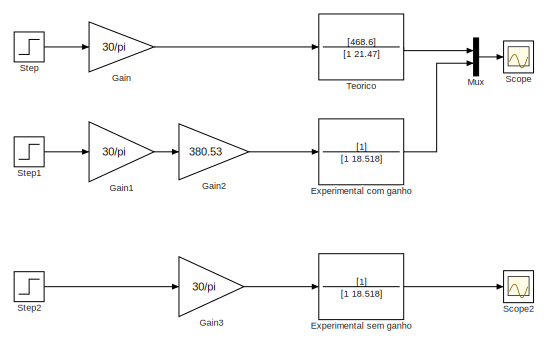
[diagram: root canvas - part 1/2, left side, full height]
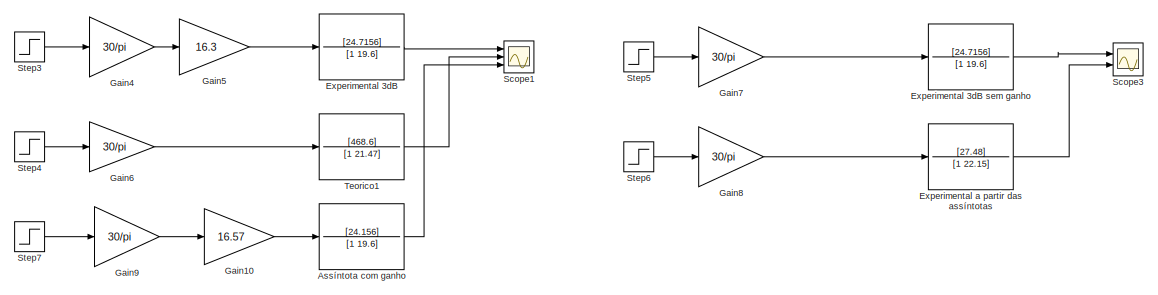
[diagram: root canvas - part 2/2, right side, full height]
MODEL slx_980a101b616e
KIND model
CONFIG AbsTol = auto
CONFIG EnableMultiTasking = off
CONFIG FixedStep = auto
CONFIG MaxStep = auto
CONFIG MinStep = auto
CONFIG RelTol = 1e-3
CONFIG SampleTimeConstraint = Unconstrained
CONFIG Solver = VariableStepAuto
CONFIG SolverName = VariableStepAuto
CONFIG StartTime = 0.0
CONFIG StopTime = 0.75
BLOCK [TransferFcn] Assíntota com ganho
  Denominator = [1 19.6]
  Numerator = [24.156]
BLOCK [TransferFcn] Experimental 3dB
  Denominator = [1 19.6]
  Numerator = [24.7156]
BLOCK [TransferFcn] Experimental 3dB sem ganho 
  Denominator = [1 19.6]
  Numerator = [24.7156]
BLOCK [TransferFcn] Experimental a partir das assíntotas
  Denominator = [1 22.15]
  Numerator = [27.48]
BLOCK [TransferFcn] Experimental com ganho
  Denominator = [1 18.518]
BLOCK [TransferFcn] Experimental sem ganho
  Denominator = [1 18.518]
BLOCK [Gain] Gain
  Gain = 30/pi
BLOCK [Gain] Gain1
  Gain = 30/pi
BLOCK [Gain] Gain10
  Gain = 16.57
BLOCK [Gain] Gain2
  Gain = 380.53
BLOCK [Gain] Gain3
  Gain = 30/pi
BLOCK [Gain] Gain4
  Gain = 30/pi
BLOCK [Gain] Gain5
  Gain = 16.3
BLOCK [Gain] Gain6
  Gain = 30/pi
BLOCK [Gain] Gain7
  Gain = 30/pi
BLOCK [Gain] Gain8
  Gain = 30/pi
BLOCK [Gain] Gain9
  Gain = 30/pi
BLOCK [Mux] Mux
  DisplayOption = bar
  Inputs = 2
  Ports = [2, 1]
BLOCK [Scope] Scope
  Floating = off
  NumInputPorts = 1
  Ports = [1]
  ScopeSpecificationString = Simulink.scopes.TimeScopeBlockCfg('CurrentConfiguration', extmgr.ConfigurationSet(extmgr.Configuration('Core','General UI',true),extmgr.Configuration('Core','Source UI',true),extmgr.Configuration('Sources','WiredSimulink',true),extmgr.Configuration('Visuals','Time Domain',true,'SerializedDisplays',{struct('MinYLimReal','-761.81449','MaxYLimReal','6856.33042','YLabelReal','','MinYLimMag',' 0.00000'...<+2008ch>
BLOCK [Scope] Scope1
  Floating = off
  NumInputPorts = 3
  Ports = [3]
  ScopeSpecificationString = Simulink.scopes.TimeScopeBlockCfg('CurrentConfiguration', extmgr.ConfigurationSet(extmgr.Configuration('Core','General UI',true),extmgr.Configuration('Core','Source UI',true),extmgr.Configuration('Sources','WiredSimulink',true,'DataLoggingVariableName','ScopeData1'),extmgr.Configuration('Visuals','Time Domain',true,'SerializedDisplays',{struct('MinYLimReal','-588.83732','MaxYLimReal','5299.53588',...<+1927ch>
BLOCK [Scope] Scope2
  Floating = off
  NumInputPorts = 1
  Ports = [1]
  ScopeSpecificationString = Simulink.scopes.TimeScopeBlockCfg('CurrentConfiguration', extmgr.ConfigurationSet(extmgr.Configuration('Core','General UI',true),extmgr.Configuration('Core','Source UI',true),extmgr.Configuration('Sources','WiredSimulink',true,'DataLoggingVariableName','ScopeData1'),extmgr.Configuration('Visuals','Time Domain',true,'SerializedDisplays',{struct('MinYLimReal','-1.54466','MaxYLimReal','13.90194','YLa...<+1899ch>
BLOCK [Scope] Scope3
  Floating = off
  NumInputPorts = 2
  Ports = [2]
  ScopeSpecificationString = Simulink.scopes.TimeScopeBlockCfg('CurrentConfiguration', extmgr.ConfigurationSet(extmgr.Configuration('Core','General UI',true),extmgr.Configuration('Core','Source UI',true),extmgr.Configuration('Sources','WiredSimulink',true,'DataLoggingVariableName','ScopeData2'),extmgr.Configuration('Visuals','Time Domain',true,'SerializedDisplays',{struct('MinYLimReal','-36.12499','MaxYLimReal','325.1249','YL...<+1867ch>
BLOCK [Step] Step
  After = 24
  SampleTime = 0
  Time = 0.1
BLOCK [Step] Step1
  After = 24
  SampleTime = 0
  Time = 0.1
BLOCK [Step] Step2
  After = 24
  SampleTime = 0
  Time = 0
BLOCK [Step] Step3
  After = 24
  SampleTime = 0
  Time = 0.1
BLOCK [Step] Step4
  After = 24
  SampleTime = 0
  Time = 0.1
BLOCK [Step] Step5
  After = 24
  SampleTime = 0
  Time = 0
BLOCK [Step] Step6
  After = 24
  SampleTime = 0
  Time = 0
BLOCK [Step] Step7
  After = 24
  SampleTime = 0
  Time = 0.1
BLOCK [TransferFcn] Teorico
  Denominator = [1 21.47]
  Numerator = [468.6]
BLOCK [TransferFcn] Teorico1
  Denominator = [1 21.47]
  Numerator = [468.6]
LINE Assíntota com ganho:1 -> Scope1:3
LINE Experimental 3dB sem ganho :1 -> Scope3:1
LINE Experimental 3dB:1 -> Scope1:1
LINE Experimental a partir das assíntotas:1 -> Scope3:2
LINE Experimental com ganho:1 -> Mux:2
LINE Experimental sem ganho:1 -> Scope2:1
LINE Gain10:1 -> Assíntota com ganho:1
LINE Gain1:1 -> Gain2:1
LINE Gain2:1 -> Experimental com ganho:1
LINE Gain3:1 -> Experimental sem ganho:1
LINE Gain4:1 -> Gain5:1
LINE Gain5:1 -> Experimental 3dB:1
LINE Gain6:1 -> Teorico1:1
LINE Gain7:1 -> Experimental 3dB sem ganho :1
LINE Gain8:1 -> Experimental a partir das assíntotas:1
LINE Gain9:1 -> Gain10:1
LINE Gain:1 -> Teorico:1
LINE Mux:1 -> Scope:1
LINE Step1:1 -> Gain1:1
LINE Step2:1 -> Gain3:1
LINE Step3:1 -> Gain4:1
LINE Step4:1 -> Gain6:1
LINE Step5:1 -> Gain7:1
LINE Step6:1 -> Gain8:1
LINE Step7:1 -> Gain9:1
LINE Step:1 -> Gain:1
LINE Teorico1:1 -> Scope1:2
LINE Teorico:1 -> Mux:1
